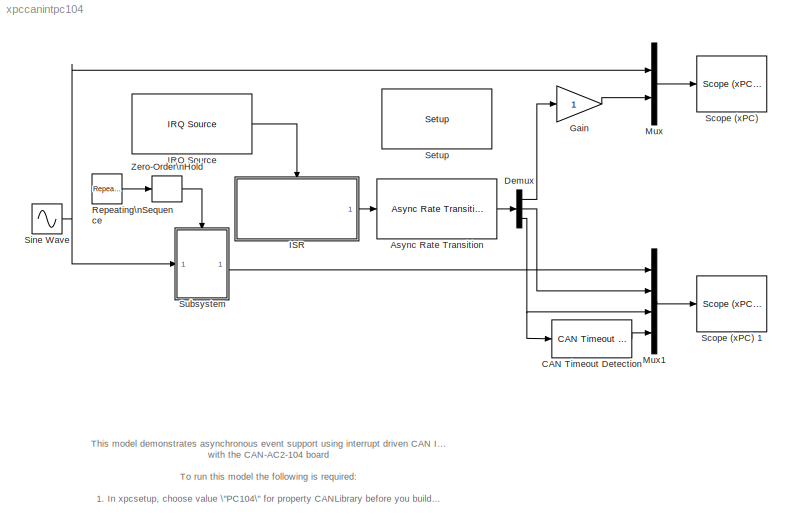
MODEL xpccanintpc104
KIND model
CONFIG AbsTol = auto
CONFIG FixedStep = auto
CONFIG MaxStep = auto
CONFIG MinStep = auto
CONFIG RelTol = 1e-3
CONFIG Solver = FixedStepDiscrete
CONFIG SolverMode = Auto
CONFIG StartTime = 0.0
CONFIG StopTime = 300
BLOCK [Reference] Async Rate Transition  REF=xpclib/Asynchronous\nEvent/Async Rate Transition
  Ports = [1, 1]
  SourceBlock = xpclib/Asynchronous\nEvent/Async Rate Transition
  SourceType = Rate Transition
  sample_time = 0.01
BLOCK [Reference] CAN Timeout Detection  REF=xpclib/CAN/Utilities/CAN Timeout Detection
  AncestorBlock = xpclib_pc104/CAN/Utilities/CAN Timeout Detection
  Ports = [1, 1]
  SourceBlock = xpclib/CAN/Utilities/CAN Timeout Detection
  SourceType = xpccantimeout
  timeout = 0.02
BLOCK [Demux] Demux
  BusSelectionMode = off
  Outputs = 3
  Ports = [1, 3]
BLOCK [Gain] Gain
  Gain = 1
  Multiplication = Element-wise(K.*u)
  SaturateOnIntegerOverflow = on
BLOCK [Reference] IRQ Source  REF=xpclib/Asynchronous\nEvent/IRQ Source
  Ports = [0, 1]
  SourceBlock = xpclib/Asynchronous\nEvent/IRQ Source
  SourceType = xpcinterrupt
  b_type = Softing CAN-AC2-104
  irqNo = 5
  preempt = on
  slot = -1
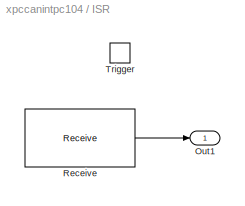
BLOCK [SubSystem] ISR
  Ports = [0, 1, 0, 1]
  RTWFcnNameOpts = Auto
  RTWFileNameOpts = Auto
  RTWSystemCode = Auto
  ShowPortLabels = on
  TreatAsAtomicUnit = on
BLOCK [Outport] ISR/Out1
  InitialOutput = []
  OutputWhenDisabled = held
  Port = 1
BLOCK [Reference] ISR/Receive   REF=xpclib/CAN/Softing/CAN-AC2-104\nSJA 1000/Receive 
  Ports = [0, 1]
  SourceBlock = xpclib/CAN/Softing/CAN-AC2-104\nSJA 1000/Receive
  SourceType = canac2104receive
  board = 1
  canPort = CAN 2
  ididx = [0]
  ids = [50]
  inten = on
  output = Data - Status - Timestamp
  range = Standard (11-bit)
  ts = -1
BLOCK [TriggerPort] ISR/Trigger
  OutputDataType = auto
  Ports = []
  ShowOutputPort = off
  TriggerType = function-call
BLOCK [Mux] Mux
  DisplayOption = bar
  Inputs = 2
  Ports = [2, 1]
BLOCK [Mux] Mux1
  DisplayOption = bar
  Inputs = 4
  Ports = [4, 1]
BLOCK [Reference] Repeating\nSequence  REF=simulink3/Sources/Repeating\nSequence
  Ports = [0, 1]
  SourceBlock = simulink3/Sources/Repeating\nSequence
  SourceType = Repeating table
  rep_seq_t = [0,2,2.01,4]
  rep_seq_y = [1,1,0,0]
BLOCK [Reference] Scope (xPC)   REF=xpclib/Misc./Scope (xPC) 
  Ports = [1]
  SourceBlock = xpclib/Misc./Scope (xPC)
  SourceType = xpcscopeblock
  autostart = on
  grid = on
  interleave = 1
  noprepostsamples = 0
  nosamples = 250
  scopeno = 1
  scopetype = Target
  triggerlevel = 0.0
  triggermode = FreeRun
  triggerscope = 1
  triggersignal = 1
  triggerslope = either
  viewmode = Graphical rolling
  ylimits = [0,0]
BLOCK [Reference] Scope (xPC) 1  REF=xpclib/Misc./Scope (xPC) 
  Ports = [1]
  SourceBlock = xpclib/Misc./Scope (xPC)
  SourceType = xpcscopeblock
  autostart = on
  grid = on
  interleave = 1
  noprepostsamples = 0
  nosamples = 10
  scopeno = 2
  scopetype = Target
  triggerlevel = 0.0
  triggermode = FreeRun
  triggerscope = 1
  triggersignal = 1
  triggerslope = either
  viewmode = Numerical
  ylimits = [0,0]
BLOCK [Reference] Setup   REF=xpclib/CAN/Softing/CAN-AC2-104\nSJA 1000/Setup 
  Ports = []
  SourceBlock = xpclib/CAN/Softing/CAN-AC2-104\nSJA 1000/Setup
  SourceType = canac2104setup
  board = 1
  can1Baudrate = 1 MBaud
  can1UserBR = [1,1,4,3]
  can2Baudrate = 1 MBaud
  can2UserBR = [1,1,4,3]
  init = []
  intNo = 5
  ioBaseAddressL = 0x300
  memBaseAddressL = 0xd0000
  term = []
BLOCK [Sin] Sine Wave
  Amplitude = 1
  Bias = 0
  Frequency = 5
  Offset = 0
  Phase = 0
  SampleTime = 0.01
  Samples = 10
  SineType = Time-based
  VectorParams1D = on
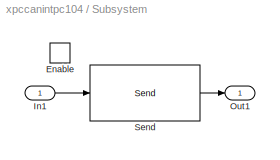
BLOCK [SubSystem] Subsystem
  Ports = [1, 1, 1]
  RTWFcnNameOpts = Auto
  RTWFileNameOpts = Auto
  RTWSystemCode = Auto
  ShowPortLabels = on
  TreatAsAtomicUnit = on
BLOCK [EnablePort] Subsystem/Enable
  Ports = []
  ShowOutputPort = off
  StatesWhenEnabling = reset
BLOCK [Inport] Subsystem/In1
  Interpolate = on
  LatchInput = off
  Port = 1
BLOCK [Outport] Subsystem/Out1
  InitialOutput = 0
  OutputWhenDisabled = reset
  Port = 1
BLOCK [Reference] Subsystem/Send   REF=xpclib/CAN/Softing/CAN-AC2-104\nSJA 1000/Send 
  Ports = [1, 1]
  SourceBlock = xpclib/CAN/Softing/CAN-AC2-104\nSJA 1000/Send
  SourceType = canac2104send
  board = 1
  canPort = CAN 1
  ididx = [0]
  ids = [50]
  output = on
  range = Standard (11-bit)
  sizes = [8]
  ts = 0.01
BLOCK [ZeroOrderHold] Zero-Order\nHold
  SampleTime = 0.01
LINE Async Rate Transition:1 -> Demux:1
LINE CAN Timeout Detection:1 -> Mux1:4
LINE Demux:1 -> Gain:1
LINE Demux:2 -> Mux1:2
NET Demux:3 -> CAN Timeout Detection:1, Mux1:3
LINE Gain:1 -> Mux:2
LINE IRQ Source:1 -> ISR:trigger
LINE ISR/Receive :1 -> ISR/Out1:1
LINE ISR:1 -> Async Rate Transition:1
LINE Mux1:1 -> Scope (xPC) 1:1
LINE Mux:1 -> Scope (xPC) :1
LINE Repeating\nSequence:1 -> Zero-Order\nHold:1
NET Sine Wave:1 -> Mux:1, Subsystem:1
LINE Subsystem/In1:1 -> Subsystem/Send :1
LINE Subsystem/Send :1 -> Subsystem/Out1:1
LINE Subsystem:1 -> Mux1:1
LINE Zero-Order\nHold:1 -> Subsystem:enable
note: NET lines group one-source signal fan-out (src -> all destinations, sorted); 1:1 wires keep LINE
